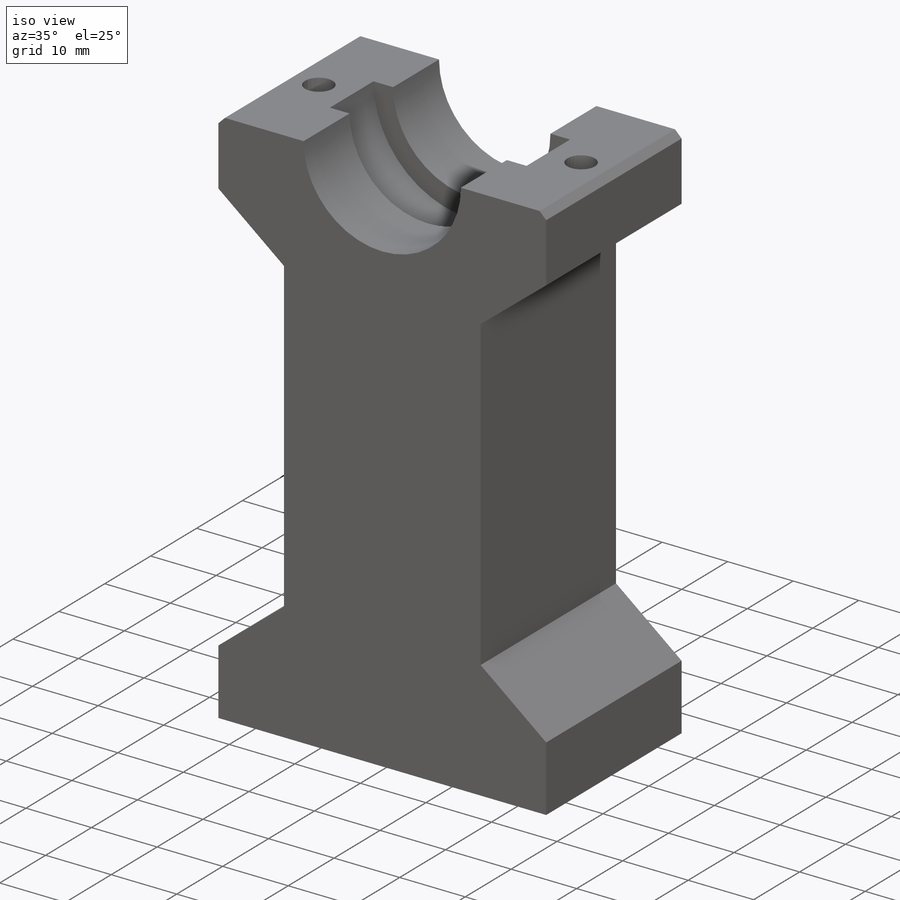
[diagram: iso view]
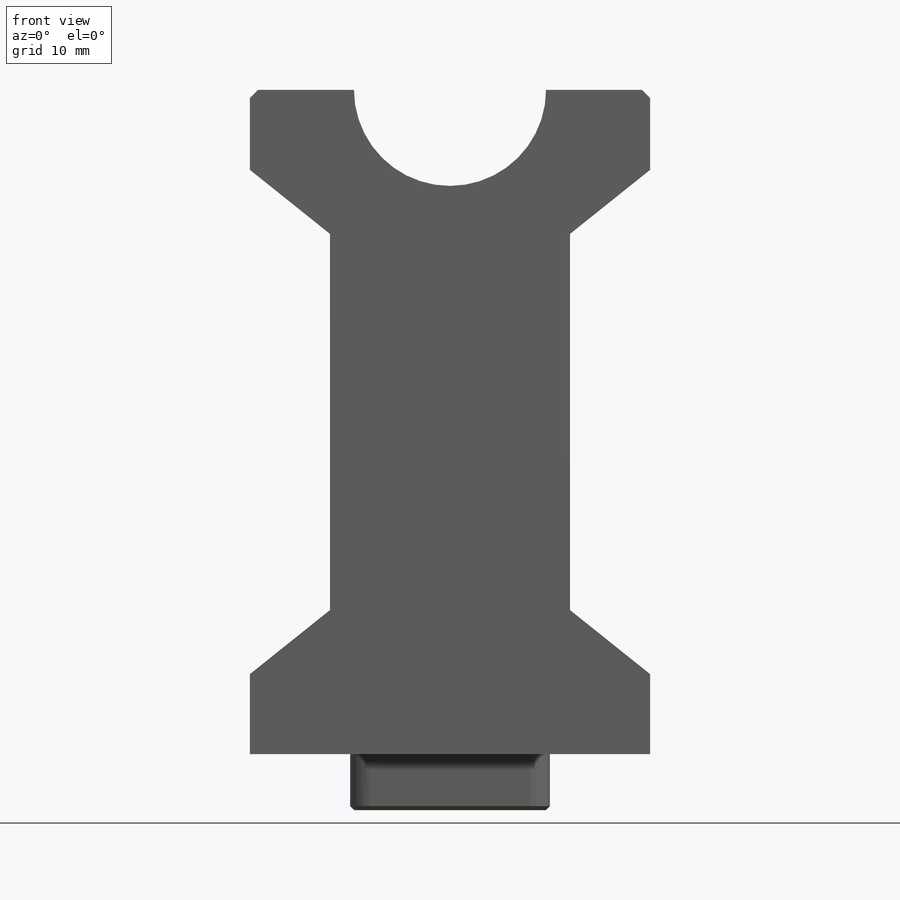
[diagram: front view]
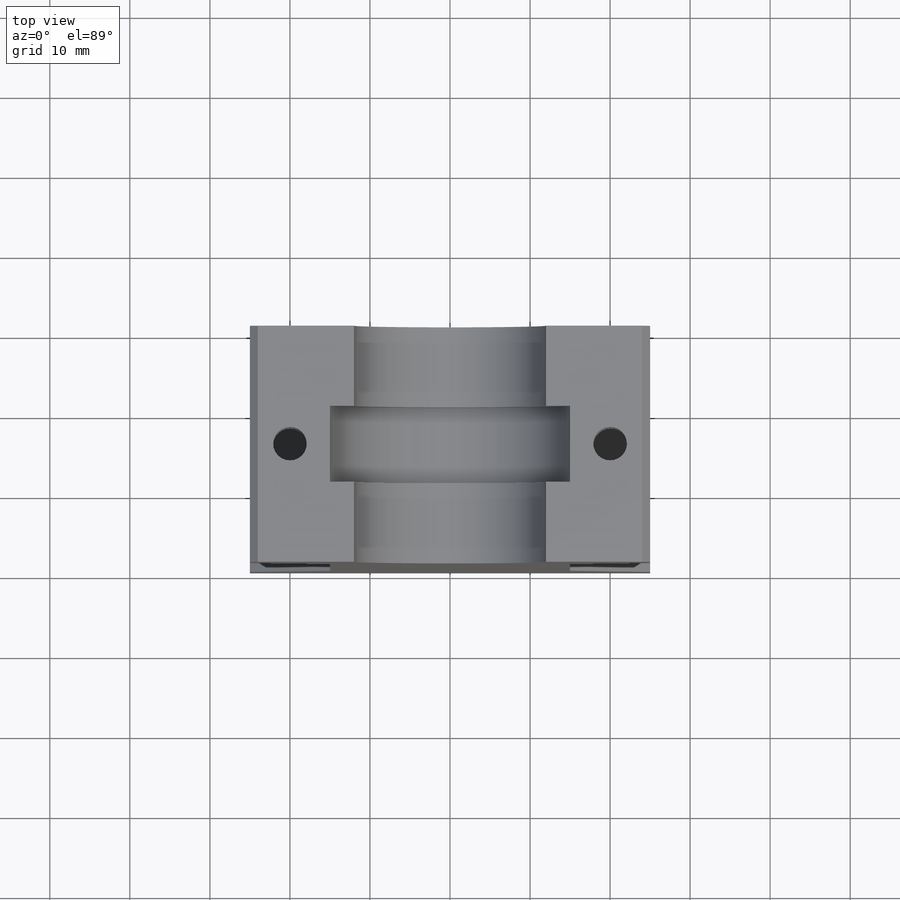
[diagram: top view]
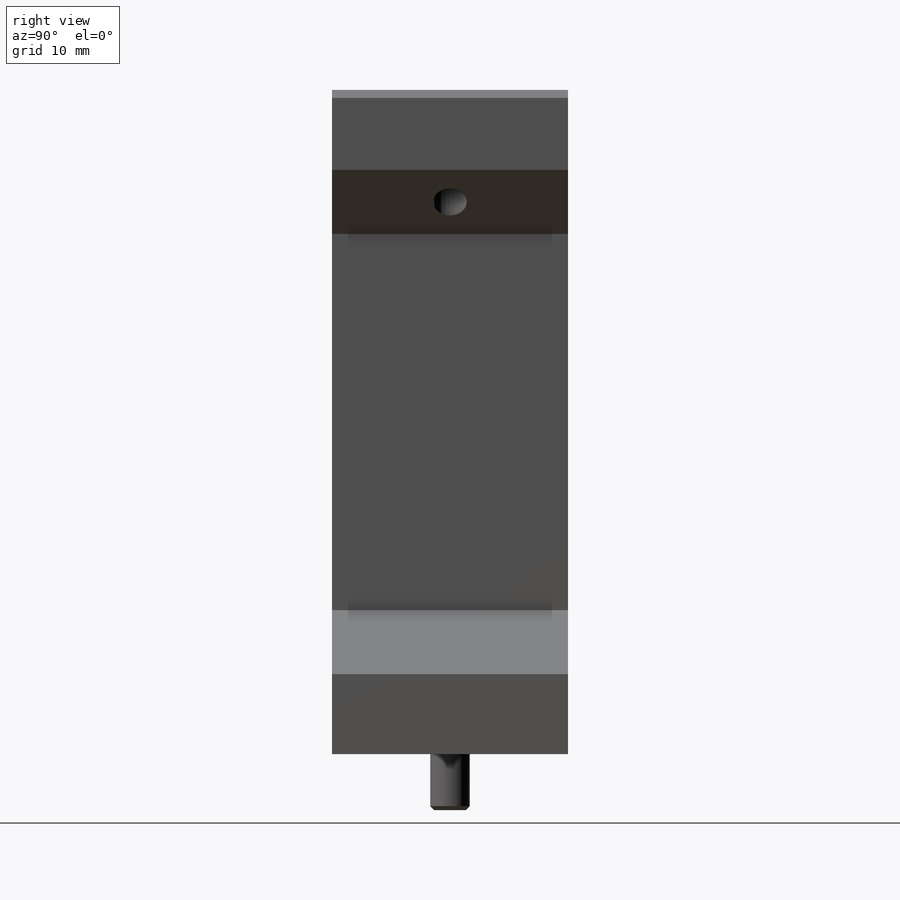
[diagram: right view]
SOLIDWORKS PART (.sldprt)
format: sldprt  version: not decoded by parser v0  size: 854,528 bytes
history: native  units: mm
features: sketch x9, thread x4, plane x3, extrude x2, chamfer x2, hole x2, material x1, cut_revolve x1 (+10 scaffold rows collapsed)
feature tree (34):
  scaffold x10  (default folders/planes/origin — collapsed)
  material  "Латунь"
  plane  "Спереди"
  plane  "Сверху"
  plane  "Справа"
  sketch  "Sketch1"  dims[c1.D7=7.5mm c1.D6=12.0mm c1.D1=8.0mm c1.D2=10.0mm c1.D3=56.0mm c1.D4=8.0mm c1.D5=10.0mm c2.D6=1.0mm c2.D7=50.0mm c2.D8=~1.414214mm c3.D6=92.0mm c3.D3=83.0mm c3.D8=30.0mm]
  extrude  "Boss-Extrude1"  Depth=29.5mm
  sketch  "Sketch2"  dims[D1=20.0mm]
  extrude  "Boss-Extrude2"  Depth=7mm
  chamfer  "Chamfer1"  Distance=0.5mm Angle=45deg
  sketch  "Sketch3"  dims[D1=4.0mm D2=4.0mm D3=13.0mm]
  hole  "Отверстие обработанное метчиком M5x0.82"  Diameter=4.2mm Depth=19mm
  sketch  "Sketch7"
  sketch  "Sketch8"  dims[hole-wizard template sketch: 47 standard entries collapsed; hole parameters kept: c15.Tap Drill Depth=19.0mm c15.D3=~14.816244mm c15.Drill Angle=118.0deg]
  thread  "Hole Thread1"  Diameter=15mm  [1 undecoded]
  thread  "Hole Thread2"  Diameter=15mm  [1 undecoded]
  sketch  "Sketch13"  dims[c1.D1=6.0mm c1.D2=17.5mm c1.D3=6.0mm c1.D4=15.0mm c2.D1=9.5mm]
  cut_revolve  "Cut-Revolve1"  Angle=360deg
  sketch  "Sketch10"  dims[D1=22.5mm]
  hole  "Отверстие обработанное метчиком M5x0.81"  [1 undecoded]
  sketch  "Sketch12"
  thread  "Hole Thread3"  Diameter=5mm  [1 undecoded]
  thread  "Hole Thread4"  Diameter=5mm  [1 undecoded]
  sketch  "Sketch11"  dims[hole-wizard template sketch: 59 standard entries collapsed; hole parameters kept: c18.Диаметр проходного сверла=4.2mm c18.Глубина проходного сверла=14.0mm]
  chamfer  "Фаска1"  Distance=1mm Angle=45deg
decode coverage: 17 of 20 modeling features carry decoded parameters
note: ~ marks probable driven/reference dimensions
note: 5 parameter values undecoded
note: suppression state not decoded; provenance and decode notes live in map.json
